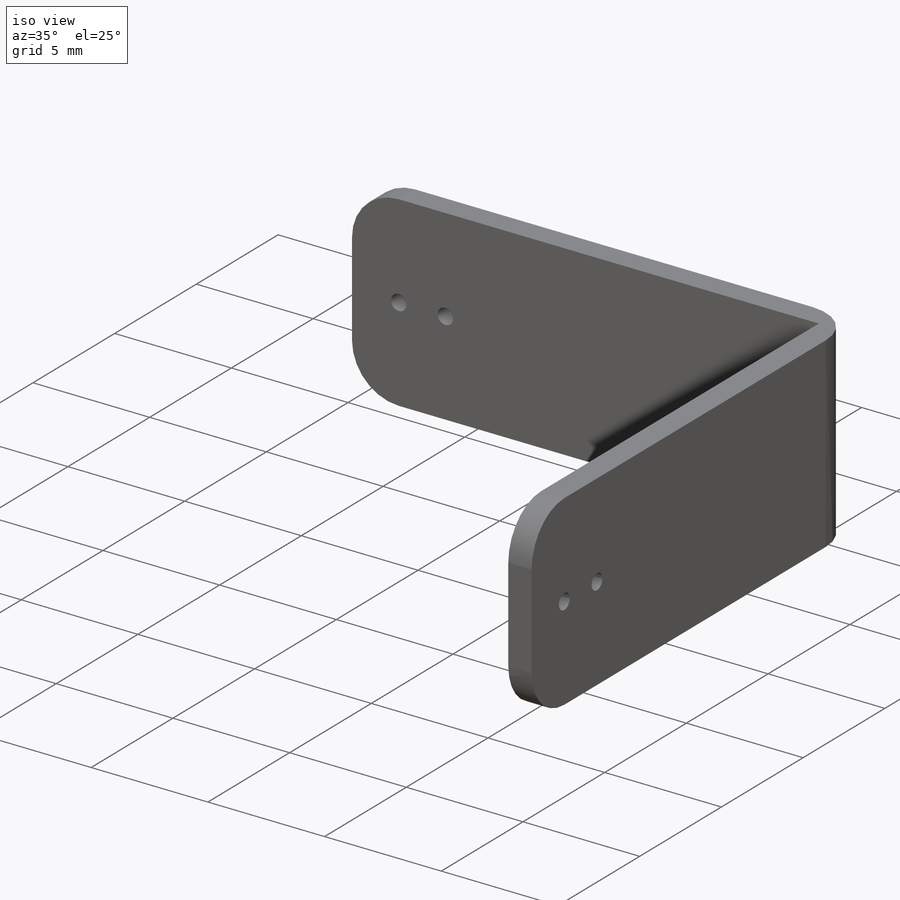
[diagram: iso view]
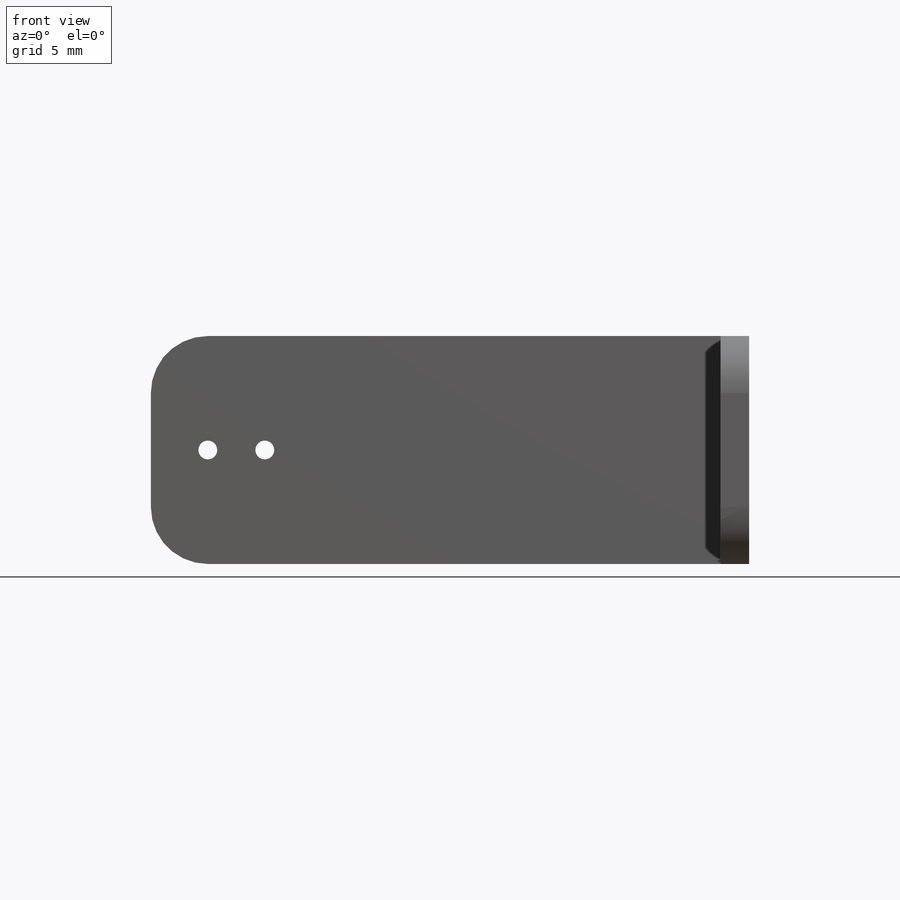
[diagram: front view]
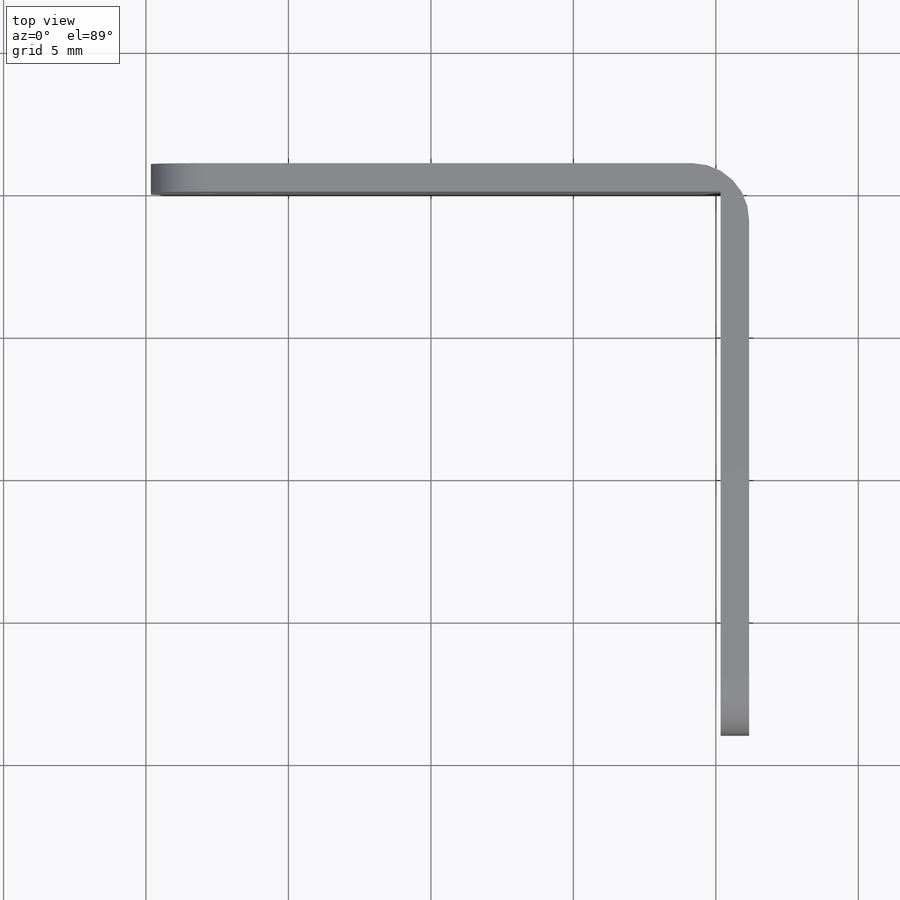
[diagram: top view]
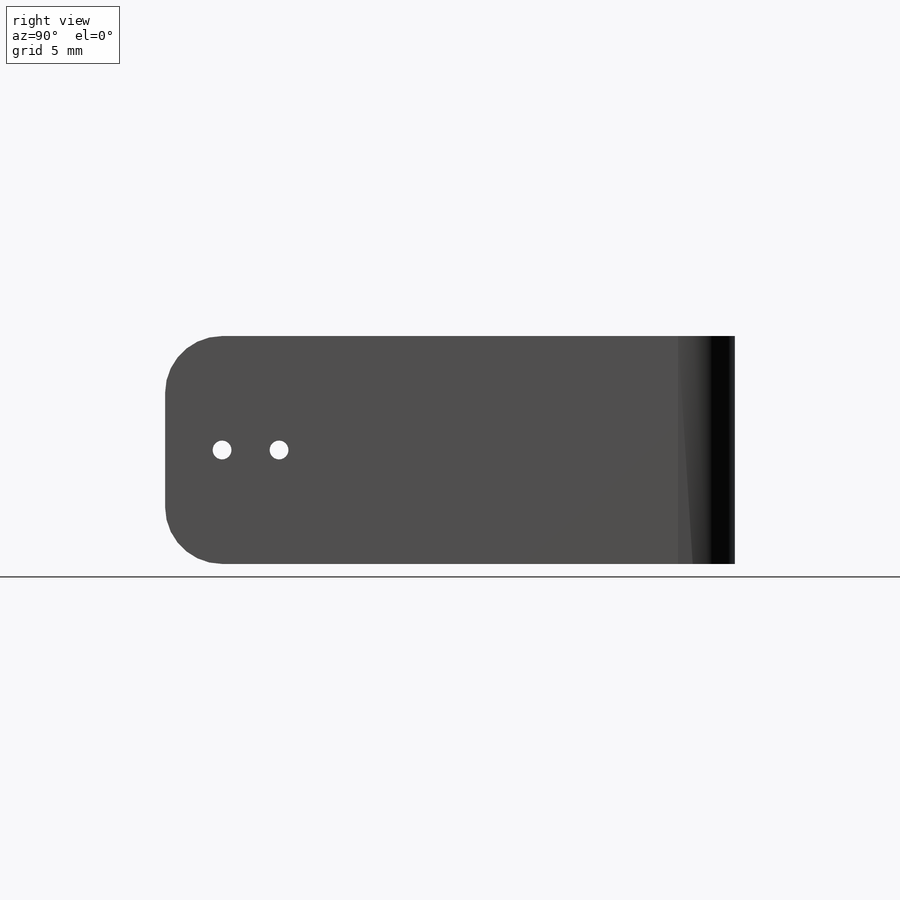
[diagram: right view]
SOLIDWORKS PART (.sldprt)
format: sldprt  version: not decoded by parser v0  size: 253,952 bytes
history: native  units: mm
features: sketch x10, hole x4, plane x3, extrude x2, material x1, fillet x1 (+13 scaffold rows collapsed)
feature tree (34):
  scaffold x13  (default folders/planes/origin — collapsed)
  material  "Matériau <non spécifié>"
  plane  "Plan de face"
  plane  "Plan de dessus"
  plane  "Plan de droite"
  sketch  "Esquisse1"  dims[D3=2.0mm D4=2.0mm D1=20.0mm D2=8.0mm]
  extrude  "Extrusion1"  Depth=1mm
  sketch  "Esquisse4"  dims[D3=2.0mm D1=20.0mm D2=8.0mm]
  extrude  "Extrusion3"  Depth=1mm
  hole  "Dégagement #00001"  Diameter=0.6604mm Depth=1mm
  sketch  "Esquisse3D1"  dims[D1=4.0mm D2=2.0mm]
  sketch  "Esquisse5"  dims[hole-wizard template sketch: 59 standard entries collapsed; hole parameters kept: c18.Diamètre du perçage jusqu'au prochain=0.6604mm c18.Profondeur du perçage jusqu'au prochain=1.0mm]
  hole  "Dégagement #00002"  Diameter=0.6604mm Depth=1mm
  sketch  "Esquisse3D2"  dims[D1=2.0mm D2=4.0mm]
  sketch  "Esquisse6"  dims[hole-wizard template sketch: 59 standard entries collapsed; hole parameters kept: c18.Diamètre du perçage jusqu'au prochain=0.6604mm c18.Profondeur du perçage jusqu'au prochain=1.0mm]
  hole  "Dégagement #00004"  Diameter=0.6604mm Depth=21mm
  sketch  "Esquisse3D4"  dims[D1=2.0mm D2=4.0mm D3=0.0mm]
  sketch  "Esquisse8"  dims[hole-wizard template sketch: 59 standard entries collapsed; hole parameters kept: c18.Diamètre du perçage jusqu'au prochain=0.6604mm c18.Profondeur du perçage jusqu'au prochain=21.0mm]
  hole  "Dégagement #00005"  Diameter=0.6604mm Depth=21mm
  sketch  "Esquisse3D5"  dims[D1=2.0mm D2=4.0mm]
  sketch  "Esquisse9"  dims[hole-wizard template sketch: 59 standard entries collapsed; hole parameters kept: c18.Diamètre du perçage jusqu'au prochain=0.6604mm c18.Profondeur du perçage jusqu'au prochain=21.0mm]
  fillet  "Congé2"  Radius=2mm
decode coverage: 17 of 17 modeling features carry decoded parameters
note: ~ marks probable driven/reference dimensions
summary: Diameter pulled from absorbed wizard sketch
note: suppression state not decoded; provenance and decode notes live in map.json
